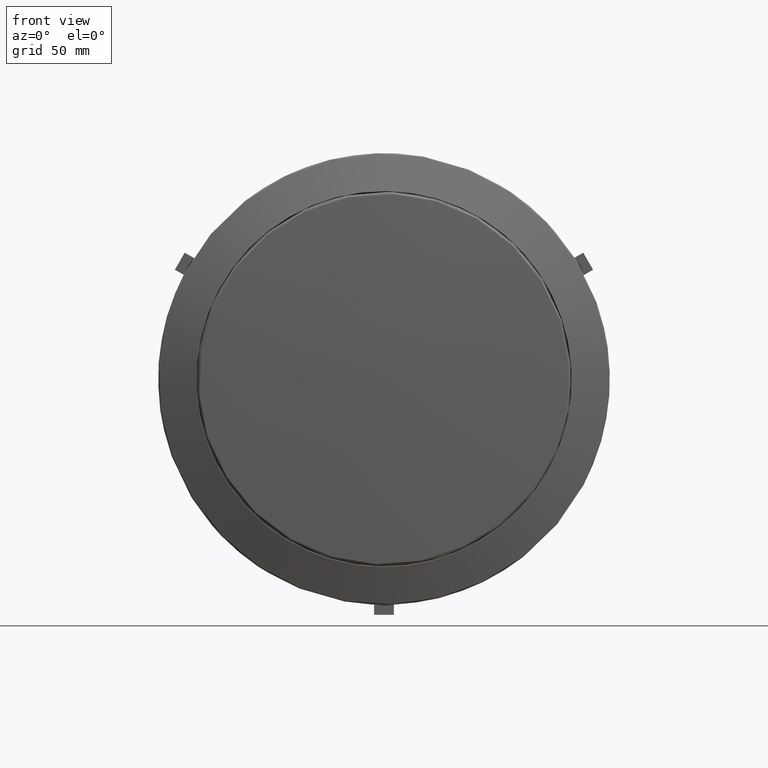
[diagram: clean part render]
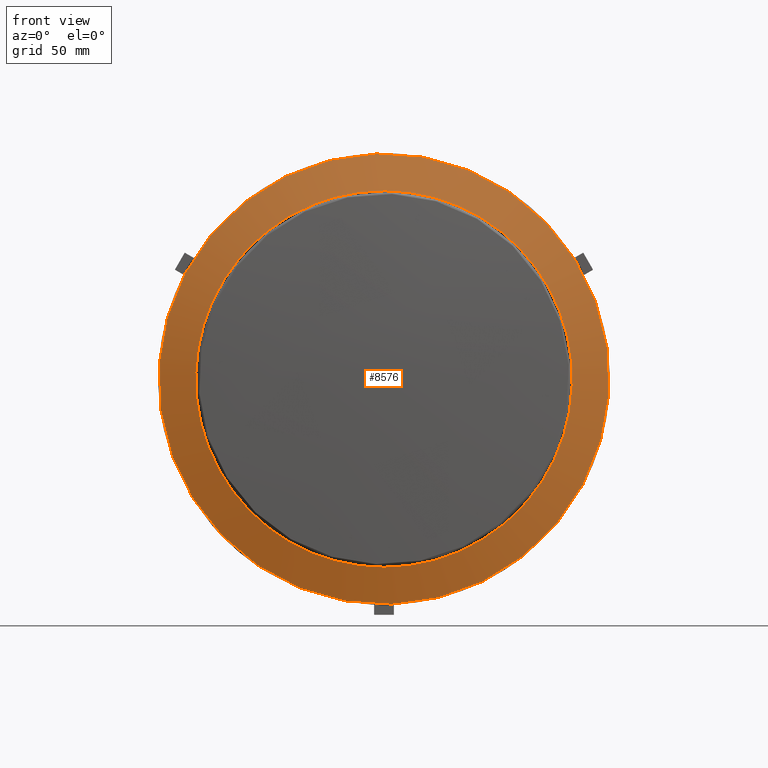
[diagram: same view with one face highlighted and labeled with its STEP entity id]
A machine part, front view. The second image highlights one B-rep face of the part: STEP entity #8576.
In plain terms, the highlighted face is a freeform B-spline surface patch.
Its self-contained STEP definition (entity closure, byte-faithful):
#15 = CARTESIAN_POINT ( 'NONE',  ( -18.18714636883196079, -17.00000000000048672, -83.03441997040792444 ) ) ;
#42 = CARTESIAN_POINT ( 'NONE',  ( 30.90446691766776866, -17.00000000000032330, 79.19520897724795816 ) ) ;
#76 = EDGE_LOOP ( 'NONE', ( #4275, #5911 ) ) ;
#337 = CARTESIAN_POINT ( 'NONE',  ( 52.52958569871540107, -17.00000000000040856, 66.82913482161433194 ) ) ;
#494 = CARTESIAN_POINT ( 'NONE',  ( 51.81137807535044715, -43.99839104527142553, 5.120517181505342741 ) ) ;
#585 = CARTESIAN_POINT ( 'NONE',  ( -51.02634797823697710, -44.13871137826630076, -5.232112960581290828 ) ) ;
#742 = CARTESIAN_POINT ( 'NONE',  ( 1.115668511469723809E-16, -11.12405438780676370, -9.361721171969675865E-17 ) ) ;
#778 = CARTESIAN_POINT ( 'NONE',  ( -70.45266991029308201, -17.00000000000020961, -47.57472006192660530 ) ) ;
#874 = CARTESIAN_POINT ( 'NONE',  ( -83.88394193690417922, -17.00000000000045475, 14.81011218868033730 ) ) ;
#964 = CARTESIAN_POINT ( 'NONE',  ( -69.66328739786796120, -17.00000000000034817, -48.72352671547204750 ) ) ;
#1070 = CARTESIAN_POINT ( 'NONE',  ( -80.20064604934897545, -17.00000000000040146, 28.19260803743741306 ) ) ;
#1175 = CARTESIAN_POINT ( 'NONE',  ( -84.91777630010082589, -17.00000000000017764, -4.653852048738946756 ) ) ;
#1203 = CARTESIAN_POINT ( 'NONE',  ( -52.03798095226228781, -17.00000000000040501, 67.22361414069990815 ) ) ;
#1253 = CARTESIAN_POINT ( 'NONE',  ( 61.41810931160747344, -17.00000000000042988, -58.82756240666076053 ) ) ;
#1281 = CARTESIAN_POINT ( 'NONE',  ( -12.86910382276147224, -17.00000000000037303, 84.20320834218146899 ) ) ;
#1481 = CARTESIAN_POINT ( 'NONE',  ( -30.31083811540089457, -17.00000000000051159, 79.42413270388878743 ) ) ;
#1560 = CARTESIAN_POINT ( 'NONE',  ( 43.38665412446357550, -17.00000000000049027, 73.14548153017940990 ) ) ;
#1842 = ORIENTED_EDGE ( 'NONE', *, *, #4756, .T. ) ;
#1868 = CARTESIAN_POINT ( 'NONE',  ( 76.11078210914254782, -17.00000000000034817, -37.85022465962216387 ) ) ;
#1962 = CARTESIAN_POINT ( 'NONE',  ( 82.58851093028772539, -17.00000000000031619, -20.29434092360734709 ) ) ;
#2071 = CARTESIAN_POINT ( 'NONE',  ( 75.79529769280009077, -17.00000000000024158, -38.47809292276075865 ) ) ;
#2155 = CARTESIAN_POINT ( 'NONE',  ( 53.62380483877026904, -17.00000000000040856, 65.95436444464964154 ) ) ;
#2157 = CIRCLE ( 'NONE', #18250, 101.6808771944329948 ) ;
#2211 = CARTESIAN_POINT ( 'NONE',  ( -85.02556129687046393, -17.00000000000056843, -1.872244650695702894 ) ) ;
#2228 = DIRECTION ( 'NONE',  ( -0.7660444431189770143, 0.0000000000000000000, 0.6427876096865403621 ) ) ;
#2320 = CARTESIAN_POINT ( 'NONE',  ( -95.30013204983018227, -16.96498591891695895, -57.99555418564261089 ) ) ;
#2329 = CARTESIAN_POINT ( 'NONE',  ( -36.01471043765982216, -17.00000000000040146, -77.19343682297096620 ) ) ;
#2509 = CARTESIAN_POINT ( 'NONE',  ( -80.65299516089800136, -17.00000000000045830, 26.87069820867333547 ) ) ;
#2741 = CARTESIAN_POINT ( 'NONE',  ( -65.11377766511085952, -17.00000000000025224, 54.63694682335430741 ) ) ;
#2883 = CARTESIAN_POINT ( 'NONE',  ( 14.29214231762215270, -17.00000000000051514, -83.80131934823168649 ) ) ;
#2905 = FACE_BOUND ( 'NONE', #76, .T. ) ;
#2919 = CARTESIAN_POINT ( 'NONE',  ( -1.790962945907395243, -17.00000000000032330, 85.02749075486833874 ) ) ;
#3214 = CARTESIAN_POINT ( 'NONE',  ( 83.30129665769126746, -17.00000000000043343, 16.96613770214856132 ) ) ;
#3376 = CARTESIAN_POINT ( 'NONE',  ( 68.66155915435638235, -17.00000000000046185, -50.41190767953399643 ) ) ;
#3441 = AXIS2_PLACEMENT_3D ( 'NONE', #18125, #18303, #2228 ) ;
#3473 = CARTESIAN_POINT ( 'NONE',  ( 69.69021969104514369, -17.00000000000051870, 48.74505873110339138 ) ) ;
#3619 = CARTESIAN_POINT ( 'NONE',  ( -140.4932248677858411, 7.584026902563996586, -7.431047669123100441 ) ) ;
#3715 = CARTESIAN_POINT ( 'NONE',  ( -43.30946299740207195, -17.00000000000042988, -73.15218697954671256 ) ) ;
#3828 = CARTESIAN_POINT ( 'NONE',  ( -20.91471560025401999, -17.00000000000026645, -82.38971679258342817 ) ) ;
#3924 = CARTESIAN_POINT ( 'NONE',  ( -71.73398259791248677, -17.00000000000034817, 45.68298343669072636 ) ) ;
#4012 = CARTESIAN_POINT ( 'NONE',  ( -46.86984330578531655, -17.00000000000028777, -70.92374117856016369 ) ) ;
#4043 = CARTESIAN_POINT ( 'NONE',  ( -18.31375682709088082, -17.00000000000042988, 83.19101259125334025 ) ) ;
#4122 = CARTESIAN_POINT ( 'NONE',  ( 36.73717077248777940, -17.00000000000049383, -76.66388287442805449 ) ) ;
#4248 = CARTESIAN_POINT ( 'NONE',  ( -47.50928488773833891, -17.00000000000042988, 70.49678364789248519 ) ) ;
#4266 = VERTEX_POINT ( 'NONE', #14313 ) ;
#4275 = ORIENTED_EDGE ( 'NONE', *, *, #12724, .F. ) ;
#4301 = CARTESIAN_POINT ( 'NONE',  ( 37.99310261474411021, -17.00000000000062172, -76.04910819598043759 ) ) ;
#4325 = CARTESIAN_POINT ( 'NONE',  ( -61.40731129977447722, -17.00000000000054712, 58.83824358145950839 ) ) ;
#4426 = CARTESIAN_POINT ( 'NONE',  ( -36.71026172158450862, -17.00000000000042633, 76.71388144040415114 ) ) ;
#4598 = EDGE_CURVE ( 'NONE', #8364, #7698, #2157, .T. ) ;
#4756 = EDGE_CURVE ( 'NONE', #7698, #8364, #6429, .T. ) ;
#4812 = CARTESIAN_POINT ( 'NONE',  ( 74.82145912838396384, -17.00000000000028777, -40.33901996129674217 ) ) ;
#4989 = CARTESIAN_POINT ( 'NONE',  ( 74.80014814038020177, -17.00000000000034817, 40.39644788647631657 ) ) ;
#5146 = CARTESIAN_POINT ( 'NONE',  ( -52.54923984490433497, -17.00000000000029132, -66.86747735217895183 ) ) ;
#5160 = CARTESIAN_POINT ( 'NONE',  ( 77.89207094625852790, -11.12405438780676370, -65.35920800264024422 ) ) ;
#5231 = CARTESIAN_POINT ( 'NONE',  ( -82.74573946961189108, -17.00000000000045475, 20.22828242743442573 ) ) ;
#5342 = CARTESIAN_POINT ( 'NONE',  ( -77.84004097752645635, -17.00000000000048672, -34.25883315237467741 ) ) ;
#5433 = CARTESIAN_POINT ( 'NONE',  ( -62.79374936737140445, -17.00000000000021316, -57.56068734044255564 ) ) ;
#5454 = CARTESIAN_POINT ( 'NONE',  ( -41.62386735313555164, -17.00000000000042988, 74.16277090217299417 ) ) ;
#5605 = CARTESIAN_POINT ( 'NONE',  ( 54.22941850268872344, -17.00000000000037303, -65.46828864246832325 ) ) ;
#5635 = CARTESIAN_POINT ( 'NONE',  ( 20.29924847787540187, -17.00000000000037659, 82.72888539224750559 ) ) ;
#5730 = CARTESIAN_POINT ( 'NONE',  ( 3.823520339413311930, -17.00000000000032330, 84.96035795920896305 ) ) ;
#5782 = CARTESIAN_POINT ( 'NONE',  ( -6.523547062030081278, -17.00000000000048672, -84.79453488172570985 ) ) ;
#5807 = CARTESIAN_POINT ( 'NONE',  ( 38.53540564168329041, -17.00000000000049027, 75.81349310266988084 ) ) ;
#5911 = ORIENTED_EDGE ( 'NONE', *, *, #15537, .F. ) ;
#5981 = CARTESIAN_POINT ( 'NONE',  ( 63.31091106542213964, -17.00000000000046541, -56.78398608247721313 ) ) ;
#6098 = CARTESIAN_POINT ( 'NONE',  ( 51.97813216212803411, -17.00000000000040501, 67.25890965240755293 ) ) ;
#6198 = CARTESIAN_POINT ( 'NONE',  ( 58.88742159649904551, -17.00000000000034461, 61.35926362360938668 ) ) ;
#6256 = CARTESIAN_POINT ( 'NONE',  ( 40.81668326023286397, -16.81065953098088173, 104.2221494726070148 ) ) ;
#6294 = CARTESIAN_POINT ( 'NONE',  ( 83.00913516144004234, -17.00000000000020961, 18.34226742729770621 ) ) ;
#6345 = CARTESIAN_POINT ( 'NONE',  ( -40.03026575384237873, -16.88656652882354336, -104.3320918016927266 ) ) ;
#6379 = CARTESIAN_POINT ( 'NONE',  ( 85.10212641538181799, -17.00000000000026645, -3.737678023554634521 ) ) ;
#6429 = CIRCLE ( 'NONE', #3441, 101.6808771944329948 ) ;
#6551 = CARTESIAN_POINT ( 'NONE',  ( -68.02278339616022151, -17.00000000000034461, -50.98878901984569723 ) ) ;
#6722 = CARTESIAN_POINT ( 'NONE',  ( -30.92467033485003469, -17.00000000000031974, -79.37043131526971251 ) ) ;
#6918 = CARTESIAN_POINT ( 'NONE',  ( -81.22352690643739948, -17.00000000000028777, -25.09364261200887469 ) ) ;
#6952 = B_SPLINE_CURVE_WITH_KNOTS ( 'NONE', 3,
 ( #14849, #3376, #13502, #4812, #10494, #2071, #1868, #10589, #9346, #17949, #14935, #12203, #1962, #13695, #10397, #16208, #12017, #6379, #9141, #7544, #7626, #3214, #6294, #18027, #12106, #8967, #7821, #4989, #14771, #10668, #16477, #3473, #9253, #15045, #13399, #6198, #13596, #13315, #2155, #337, #6098, #17863, #10011, #14476, #1560, #5807, #8410, #13030, #42, #11601, #8669, #5635, #14559, #11346, #5730, #2919, #17074, #1281, #4043, #11454, #18716, #17449, #1481, #11248, #4426, #5454, #18814, #4248, #10091, #15724, #1203, #17272, #15912, #4325, #7038, #2741 ),
 .UNSPECIFIED., .F., .F.,
 ( 4, 2, 2, 2, 2, 2, 2, 2, 2, 2, 2, 2, 2, 2, 2, 2, 2, 2, 2, 2, 2, 2, 2, 2, 2, 2, 2, 2, 2, 2, 2, 2, 2, 2, 2, 2, 2, 4 ),
 ( 0.2657188851970301302, 0.2823263155218445064, 0.2844022443124463173, 0.2864781731030480727, 0.2906300306842516945, 0.2989337458466589381, 0.3072374610090661262, 0.3113893185902697480, 0.3155411761714733698, 0.3321486064962878570, 0.3404523216586951007, 0.3446041792398986670, 0.3487560368211022888, 0.3653634671459167205, 0.3695153247271203423, 0.3736671823083239641, 0.3819708974707311522, 0.3902746126331383403, 0.3985783277955455839, 0.4006542565861473948, 0.4027301853767492057, 0.4068820429579527165, 0.4151857581203599601, 0.4234894732827670927, 0.4276413308639707145, 0.4317931884451742808, 0.4484006187699886570, 0.4567043339323958451, 0.4650080490948029777, 0.4816154794196173539, 0.4857673370008209757, 0.4899191945820245420, 0.4982229097444317856, 0.5065266249068389737, 0.5106784824880425955, 0.5148303400692462173, 0.5231340552316534609, 0.5314377703940605935 ),
 .UNSPECIFIED. ) ;
#7001 = CARTESIAN_POINT ( 'NONE',  ( 44.17553382664287653, -17.00000000000062883, -72.83272252440153238 ) ) ;
#7038 = CARTESIAN_POINT ( 'NONE',  ( -63.30898623028334526, -17.00000000000025580, 56.78781349969327152 ) ) ;
#7121 = CARTESIAN_POINT ( 'NONE',  ( 10.15519806190962626, -17.00000000000028777, -84.40271091915103341 ) ) ;
#7258 = B_SPLINE_CURVE_WITH_KNOTS ( 'NONE', 3,
 ( #9400, #9784, #15188, #3924, #8188, #8267, #13887, #18206, #9599, #1070, #2509, #5231, #874, #11315, #15492, #12725, #15293, #14176, #9696, #2211, #1175, #12451, #13966, #6918, #12643, #18396, #15582, #5342, #7980, #13771, #18499, #778, #964, #6551, #18290, #5433, #12371, #5146, #11026, #4012, #16749, #3715, #9493, #2329, #6722, #8092, #16857, #3828, #15401, #9981, #15, #11677, #14260, #5782, #17329, #15874, #14612, #8639, #7121, #13005, #2883, #12820, #17137, #11419, #8463, #10257, #7289, #4122, #4301, #7001, #17245, #5605, #11497, #13181, #15695, #1253, #5981, #10063 ),
 .UNSPECIFIED., .F., .F.,
 ( 4, 2, 2, 2, 2, 2, 2, 2, 2, 2, 2, 2, 2, 2, 2, 2, 2, 2, 2, 2, 2, 2, 2, 2, 2, 2, 2, 2, 2, 2, 2, 2, 2, 2, 2, 2, 2, 2, 4 ),
 ( 0.0000000000000000000, 0.008303715162407108302, 0.01660743032481421660, 0.02491114548722132491, 0.02906300306842489120, 0.03321486064962845403, 0.04982229097444269839, 0.05397414855564626468, 0.05605007734624804783, 0.05812600613684983097, 0.06642972129925696356, 0.08303715162407122874, 0.08718900920527479503, 0.09134086678647836133, 0.09964458194888553555, 0.1079482971112927236, 0.1121001546924963177, 0.1162520122736999117, 0.1328594425985143157, 0.1411631577609215316, 0.1453150153421251256, 0.1494668729233287197, 0.1660743032481431514, 0.1702261608293467454, 0.1723020896199485841, 0.1743780184105503672, 0.1826817335729575831, 0.1909854487353648267, 0.1992891638977720425, 0.2034410214789756643, 0.2075928790601792862, 0.2158965942225865020, 0.2242003093849937179, 0.2283521669661973952, 0.2325040245474010170, 0.2491114548722155875, 0.2532633124534192093, 0.2574151700346228866, 0.2657188851970301302 ),
 .UNSPECIFIED. ) ;
#7289 = CARTESIAN_POINT ( 'NONE',  ( 34.18557354488371658, -17.00000000000048672, -77.83519265189940484 ) ) ;
#7544 = CARTESIAN_POINT ( 'NONE',  ( 84.44488035737533949, -17.00000000000029132, 10.08662034481182168 ) ) ;
#7626 = CARTESIAN_POINT ( 'NONE',  ( 84.07087730072007048, -17.00000000000042633, 12.84176792395391153 ) ) ;
#7698 = VERTEX_POINT ( 'NONE', #11694 ) ;
#7821 = CARTESIAN_POINT ( 'NONE',  ( 78.00473781348490832, -17.00000000000034817, 34.22314271570824928 ) ) ;
#7980 = CARTESIAN_POINT ( 'NONE',  ( -76.68195594449257158, -17.00000000000028422, -36.77688126825302817 ) ) ;
#8092 = CARTESIAN_POINT ( 'NONE',  ( -24.28845664226022194, -17.00000000000031974, -81.46783666940100943 ) ) ;
#8188 = CARTESIAN_POINT ( 'NONE',  ( -73.18276135986431541, -17.00000000000040856, 43.32378716851419398 ) ) ;
#8267 = CARTESIAN_POINT ( 'NONE',  ( -75.84723544807899032, -17.00000000000040146, 38.46900011387403850 ) ) ;
#8364 = VERTEX_POINT ( 'NONE', #5160 ) ;
#8410 = CARTESIAN_POINT ( 'NONE',  ( 36.04289843160004381, -17.00000000000040856, 77.03032411143513514 ) ) ;
#8463 = CARTESIAN_POINT ( 'NONE',  ( 29.01846842039170227, -17.00000000000034461, -79.94185715670477066 ) ) ;
#8552 = EDGE_LOOP ( 'NONE', ( #1842, #10068 ) ) ;
#8576 = ADVANCED_FACE ( 'NONE', ( #2905, #11870 ), #10279, .T. ) ;
#8639 = CARTESIAN_POINT ( 'NONE',  ( 8.761991871345889749, -17.00000000000043343, -84.55882263702763169 ) ) ;
#8669 = CARTESIAN_POINT ( 'NONE',  ( 26.94899372837277340, -17.00000000000037659, 80.62690143473065518 ) ) ;
#8967 = CARTESIAN_POINT ( 'NONE',  ( 80.06270957779361197, -17.00000000000018474, 29.08404521625974226 ) ) ;
#9107 = CARTESIAN_POINT ( 'NONE',  ( -16.85032634901293491, 7.724210625485255832, 139.9208208393853283 ) ) ;
#9141 = CARTESIAN_POINT ( 'NONE',  ( 85.16133576927315119, -17.00000000000029132, 1.804938836010885783 ) ) ;
#9206 = CARTESIAN_POINT ( 'NONE',  ( 17.60334867053479968, 7.808341483068651279, -139.9742998546058459 ) ) ;
#9253 = CARTESIAN_POINT ( 'NONE',  ( 68.06000826554125638, -17.00000000000042988, 50.99517944755164223 ) ) ;
#9346 = CARTESIAN_POINT ( 'NONE',  ( 77.61092265966769332, -17.00000000000037659, -34.69123735938811848 ) ) ;
#9400 = CARTESIAN_POINT ( 'NONE',  ( -65.11377766511085952, -17.00000000000025224, 54.63694682335430741 ) ) ;
#9488 = CARTESIAN_POINT ( 'NONE',  ( 4.230557657285610063, -44.05233718068038939, -51.58409649030319599 ) ) ;
#9493 = CARTESIAN_POINT ( 'NONE',  ( -42.10511236819048975, -17.00000000000040501, -73.85181034334708272 ) ) ;
#9599 = CARTESIAN_POINT ( 'NONE',  ( -79.22694569620641403, -17.00000000000040501, 30.82300845692868307 ) ) ;
#9696 = CARTESIAN_POINT ( 'NONE',  ( -84.98725514915571466, -17.00000000000056843, 1.630083764452968209 ) ) ;
#9784 = CARTESIAN_POINT ( 'NONE',  ( -66.91856909993835245, -17.00000000000024869, 52.48608014701537172 ) ) ;
#9981 = CARTESIAN_POINT ( 'NONE',  ( -18.86951942484989786, -17.00000000000027001, -82.88203618468098455 ) ) ;
#10011 = CARTESIAN_POINT ( 'NONE',  ( 49.18219254256437267, -17.00000000000028777, 69.34003299241557272 ) ) ;
#10063 = CARTESIAN_POINT ( 'NONE',  ( 65.09446042840019686, -17.00000000000048672, -54.65995994816278625 ) ) ;
#10068 = ORIENTED_EDGE ( 'NONE', *, *, #4598, .T. ) ;
#10091 = CARTESIAN_POINT ( 'NONE',  ( -48.65729134492067232, -17.00000000000029132, 69.70952072100902797 ) ) ;
#10257 = CARTESIAN_POINT ( 'NONE',  ( 32.90037864564111914, -17.00000000000034817, -78.38691277091540144 ) ) ;
#10279 =( BOUNDED_SURFACE ( )  B_SPLINE_SURFACE ( 3, 3, ( 
 ( #10737, #16648, #13760, #9206 ),
 ( #13656, #494, #9488, #6345 ),
 ( #6256, #13463, #585, #2320 ),
 ( #9107, #13880, #12158, #3619 ) ),
 .UNSPECIFIED., .F., .F., .T. ) 
 B_SPLINE_SURFACE_WITH_KNOTS ( ( 4, 4 ),
 ( 4, 4 ),
 ( 0.0000000000000000000, 1.000000000000000000 ),
 ( 0.0000000000000000000, 1.000000000000000000 ),
 .UNSPECIFIED. ) 
 GEOMETRIC_REPRESENTATION_ITEM ( )  RATIONAL_B_SPLINE_SURFACE ( (
 ( 1.000000000000000000, 0.9533040653963564814, 0.9533040653963564814, 1.000000000000000000),
 ( 0.9534826367027493532, 0.9089588738535682166, 0.9089588738535682166, 0.9534826367027493532),
 ( 0.9534826367027493532, 0.9089588738535682166, 0.9089588738535682166, 0.9534826367027493532),
 ( 1.000000000000000000, 0.9533040653963564814, 0.9533040653963564814, 1.000000000000000000) ) ) 
 REPRESENTATION_ITEM ( '' )  SURFACE ( )  );
#10397 = CARTESIAN_POINT ( 'NONE',  ( 83.70502507703301376, -17.00000000000040146, -14.84658807982667739 ) ) ;
#10494 = CARTESIAN_POINT ( 'NONE',  ( 75.15077830239852119, -17.00000000000023448, -39.72217652466367355 ) ) ;
#10589 = CARTESIAN_POINT ( 'NONE',  ( 77.03096605287193199, -17.00000000000034817, -35.96099149300413700 ) ) ;
#10668 = CARTESIAN_POINT ( 'NONE',  ( 72.71673934859508392, -17.00000000000060041, 44.03674929182501785 ) ) ;
#10707 = DIRECTION ( 'NONE',  ( -7.282777080096722121E-19, -1.000000000000000000, 6.110442687804319186E-19 ) ) ;
#10737 = CARTESIAN_POINT ( 'NONE',  ( 141.1322678031451687, 7.948395978554429142, 7.241733310961729231 ) ) ;
#10990 = DIRECTION ( 'NONE',  ( -0.7660444431189770143, 0.0000000000000000000, 0.6427876096865403621 ) ) ;
#11026 = CARTESIAN_POINT ( 'NONE',  ( -50.33459162085016914, -17.00000000000029132, -68.55119242911040089 ) ) ;
#11248 = CARTESIAN_POINT ( 'NONE',  ( -34.18955711152418786, -17.00000000000051159, 77.87061857088069416 ) ) ;
#11315 = CARTESIAN_POINT ( 'NONE',  ( -84.64270622143915546, -17.00000000000045830, 7.908269698884027754 ) ) ;
#11346 = CARTESIAN_POINT ( 'NONE',  ( 6.606628765212012588, -17.00000000000051870, 84.78827985647878052 ) ) ;
#11419 = CARTESIAN_POINT ( 'NONE',  ( 26.39492374038211864, -17.00000000000054001, -80.84536412201595112 ) ) ;
#11454 = CARTESIAN_POINT ( 'NONE',  ( -25.01298494565385511, -17.00000000000042633, 81.24836444923333545 ) ) ;
#11497 = CARTESIAN_POINT ( 'NONE',  ( 55.29347263300569182, -17.00000000000029132, -64.57226853825038404 ) ) ;
#11601 = CARTESIAN_POINT ( 'NONE',  ( 28.27478289534501243, -17.00000000000031619, 80.17171479166636061 ) ) ;
#11677 = CARTESIAN_POINT ( 'NONE',  ( -14.77198808840020483, -17.00000000000048317, -83.75311011384093263 ) ) ;
#11694 = CARTESIAN_POINT ( 'NONE',  ( -77.89207094625851369, -11.12405438780676370, 65.35920800264024422 ) ) ;
#11870 = FACE_OUTER_BOUND ( 'NONE', #8552, .T. ) ;
#12017 = CARTESIAN_POINT ( 'NONE',  ( 84.33625969382390508, -17.00000000000027001, -10.69365165388604488 ) ) ;
#12106 = CARTESIAN_POINT ( 'NONE',  ( 82.00437998417098129, -17.00000000000017764, 22.41013409941421841 ) ) ;
#12158 = CARTESIAN_POINT ( 'NONE',  ( -100.2767462605217901, -17.09946405109877432, 40.49708519257187334 ) ) ;
#12203 = CARTESIAN_POINT ( 'NONE',  ( 81.88341136547622057, -17.00000000000043343, -22.97321975075474754 ) ) ;
#12371 = CARTESIAN_POINT ( 'NONE',  ( -58.91606035033317568, -17.00000000000029132, -61.51931709376616197 ) ) ;
#12451 = CARTESIAN_POINT ( 'NONE',  ( -84.19210003394363184, -17.00000000000017764, -12.93980581221610038 ) ) ;
#12643 = CARTESIAN_POINT ( 'NONE',  ( -80.79735503416090125, -17.00000000000020961, -26.43381355022883739 ) ) ;
#12724 = EDGE_CURVE ( 'NONE', #4266, #16680, #7258, .T. ) ;
#12725 = CARTESIAN_POINT ( 'NONE',  ( -84.88729167918418739, -17.00000000000017408, 4.431133773438673984 ) ) ;
#12820 = CARTESIAN_POINT ( 'NONE',  ( 18.38480414975396826, -17.00000000000051870, -83.03435916837814545 ) ) ;
#13005 = CARTESIAN_POINT ( 'NONE',  ( 12.91911800374480457, -17.00000000000029132, -84.02405636592239091 ) ) ;
#13030 = CARTESIAN_POINT ( 'NONE',  ( 32.20187981354860085, -17.00000000000040501, 78.67642135029501560 ) ) ;
#13181 = CARTESIAN_POINT ( 'NONE',  ( 57.38258973205004310, -17.00000000000029132, -62.72307689866697444 ) ) ;
#13315 = CARTESIAN_POINT ( 'NONE',  ( 54.16717584464872459, -17.00000000000034817, 65.50883813553750201 ) ) ;
#13399 = CARTESIAN_POINT ( 'NONE',  ( 62.76100691526647068, -17.00000000000035172, 57.39114623090650724 ) ) ;
#13463 = CARTESIAN_POINT ( 'NONE',  ( -3.431594722719768065, -44.08474944609866952, 51.48910522031610526 ) ) ;
#13502 = CARTESIAN_POINT ( 'NONE',  ( 71.79473158027651891, -17.00000000000028777, -45.84432658246083037 ) ) ;
#13596 = CARTESIAN_POINT ( 'NONE',  ( 56.84825431018270336, -17.00000000000035172, 63.25447800387644293 ) ) ;
#13656 = CARTESIAN_POINT ( 'NONE',  ( 96.04670286446312844, -16.73228531823016496, 57.83812441850193409 ) ) ;
#13695 = CARTESIAN_POINT ( 'NONE',  ( 83.45040877465189055, -17.00000000000031974, -16.21603768324896322 ) ) ;
#13760 = CARTESIAN_POINT ( 'NONE',  ( 57.78275398365752835, -16.85239515812692446, -92.09034922439313675 ) ) ;
#13771 = CARTESIAN_POINT ( 'NONE',  ( -74.12685421087479654, -17.00000000000029132, -41.68777816209443898 ) ) ;
#13880 = CARTESIAN_POINT ( 'NONE',  ( -57.04363627779876822, -17.05044725851747600, 92.02029933350243596 ) ) ;
#13887 = CARTESIAN_POINT ( 'NONE',  ( -77.06293993354758243, -17.00000000000042988, 35.97341468714554935 ) ) ;
#13966 = CARTESIAN_POINT ( 'NONE',  ( -83.17569604439957232, -17.00000000000028777, -18.38584102226459294 ) ) ;
#14176 = CARTESIAN_POINT ( 'NONE',  ( -84.97087655992876876, -17.00000000000034461, 2.332567889047837628 ) ) ;
#14260 = CARTESIAN_POINT ( 'NONE',  ( -12.02934826369910226, -17.00000000000048317, -84.19005043607802463 ) ) ;
#14313 = CARTESIAN_POINT ( 'NONE',  ( -65.11377766511085952, -17.00000000000025224, 54.63694682335430741 ) ) ;
#14476 = CARTESIAN_POINT ( 'NONE',  ( 45.74539237299640604, -17.00000000000028777, 71.69429566830707756 ) ) ;
#14559 = CARTESIAN_POINT ( 'NONE',  ( 14.88058517563609229, -17.00000000000051870, 83.87113903769417789 ) ) ;
#14612 = CARTESIAN_POINT ( 'NONE',  ( 4.570335177321071640, -17.00000000000042988, -84.92337714448200359 ) ) ;
#14771 = CARTESIAN_POINT ( 'NONE',  ( 74.12734029348821707, -17.00000000000059330, 41.61846814451437382 ) ) ;
#14849 = CARTESIAN_POINT ( 'NONE',  ( 65.09446042840019686, -17.00000000000048672, -54.65995994816278625 ) ) ;
#14935 = CARTESIAN_POINT ( 'NONE',  ( 80.21527286254529088, -17.00000000000043343, -28.25193590095509677 ) ) ;
#15045 = CARTESIAN_POINT ( 'NONE',  ( 64.59540760814087434, -17.00000000000042988, 55.31822817057388875 ) ) ;
#15188 = CARTESIAN_POINT ( 'NONE',  ( -68.60187448440306923, -17.00000000000034461, 50.26412291347363492 ) ) ;
#15293 = CARTESIAN_POINT ( 'NONE',  ( -84.92088955421623098, -17.00000000000034817, 3.732727372884245831 ) ) ;
#15401 = CARTESIAN_POINT ( 'NONE',  ( -20.23293414718948569, -17.00000000000026645, -82.55979082603738561 ) ) ;
#15492 = CARTESIAN_POINT ( 'NONE',  ( -84.76096069341498662, -17.00000000000017764, 6.521386578826048108 ) ) ;
#15537 = EDGE_CURVE ( 'NONE', #16680, #4266, #6952, .T. ) ;
#15582 = CARTESIAN_POINT ( 'NONE',  ( -79.39521680661222547, -17.00000000000048672, -30.38641892880533746 ) ) ;
#15695 = CARTESIAN_POINT ( 'NONE',  ( 58.40944527918914275, -17.00000000000042633, -61.76814117898854306 ) ) ;
#15724 = CARTESIAN_POINT ( 'NONE',  ( -50.92045101543133967, -17.00000000000028777, 68.07390798655778497 ) ) ;
#15874 = CARTESIAN_POINT ( 'NONE',  ( 1.786557376047887225, -17.00000000000037303, -85.02647465037740915 ) ) ;
#15912 = CARTESIAN_POINT ( 'NONE',  ( -57.41338257535842615, -17.00000000000054357, 62.74153560500487714 ) ) ;
#16208 = CARTESIAN_POINT ( 'NONE',  ( 84.14778153488552448, -17.00000000000040856, -12.08731829298598726 ) ) ;
#16477 = CARTESIAN_POINT ( 'NONE',  ( 71.97836172848235492, -17.00000000000051870, 45.23347555411216803 ) ) ;
#16648 = CARTESIAN_POINT ( 'NONE',  ( 100.9760098106080335, -16.80342355135086763, -40.61463141678421351 ) ) ;
#16680 = VERTEX_POINT ( 'NONE', #18276 ) ;
#16749 = CARTESIAN_POINT ( 'NONE',  ( -45.69024113090019767, -17.00000000000042988, -71.68928727790574840 ) ) ;
#16857 = CARTESIAN_POINT ( 'NONE',  ( -22.94740793855227423, -17.00000000000026290, -81.85584594950870496 ) ) ;
#17074 = CARTESIAN_POINT ( 'NONE',  ( -4.576333126925296924, -17.00000000000037659, 84.92205665897685662 ) ) ;
#17137 = CARTESIAN_POINT ( 'NONE',  ( 21.07809268394620972, -17.00000000000054001, -82.39161916171390487 ) ) ;
#17245 = CARTESIAN_POINT ( 'NONE',  ( 48.81311885457932931, -17.00000000000038014, -69.80763432684118186 ) ) ;
#17272 = CARTESIAN_POINT ( 'NONE',  ( -55.32112696118176842, -17.00000000000040146, 64.59439565975777953 ) ) ;
#17329 = CARTESIAN_POINT ( 'NONE',  ( -3.760384706306917568, -17.00000000000037303, -84.96206615654868699 ) ) ;
#17449 = CARTESIAN_POINT ( 'NONE',  ( -29.00162576314374263, -17.00000000000037659, 79.91165155308560486 ) ) ;
#17863 = CARTESIAN_POINT ( 'NONE',  ( 50.31087821613592581, -17.00000000000040501, 68.52564582621845091 ) ) ;
#17949 = CARTESIAN_POINT ( 'NONE',  ( 79.25223713369931033, -17.00000000000038014, -30.85177420743962529 ) ) ;
#18027 = CARTESIAN_POINT ( 'NONE',  ( 82.36089107288175626, -17.00000000000020606, 21.06273762609305322 ) ) ;
#18125 = CARTESIAN_POINT ( 'NONE',  ( 1.115668511469723809E-16, -11.12405438780676370, -9.361721171969675865E-17 ) ) ;
#18206 = CARTESIAN_POINT ( 'NONE',  ( -78.70770953077624199, -17.00000000000042988, 32.12541484996281582 ) ) ;
#18250 = AXIS2_PLACEMENT_3D ( 'NONE', #742, #10707, #10990 ) ;
#18276 = CARTESIAN_POINT ( 'NONE',  ( 65.09446042840019686, -17.00000000000048672, -54.65995994816278625 ) ) ;
#18290 = CARTESIAN_POINT ( 'NONE',  ( -67.16971425825013853, -17.00000000000020606, -52.10743677139011254 ) ) ;
#18303 = DIRECTION ( 'NONE',  ( -7.282777080096722121E-19, -1.000000000000000000, 6.110442687804319186E-19 ) ) ;
#18396 = CARTESIAN_POINT ( 'NONE',  ( -79.88322965534300124, -17.00000000000020606, -29.07969565102486698 ) ) ;
#18499 = CARTESIAN_POINT ( 'NONE',  ( -72.72983651964588603, -17.00000000000020961, -44.08062642096307115 ) ) ;
#18716 = CARTESIAN_POINT ( 'NONE',  ( -26.34991619775065885, -17.00000000000037303, 80.82479982789151052 ) ) ;
#18814 = CARTESIAN_POINT ( 'NONE',  ( -44.01676572273532884, -17.00000000000042988, 72.76839256352792518 ) ) ;